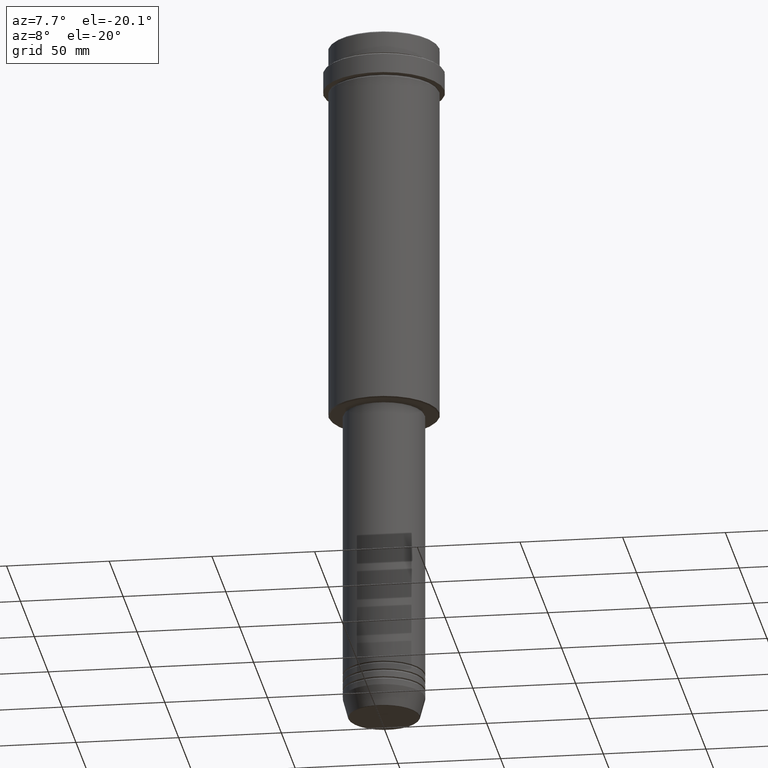
[diagram: clean part render]
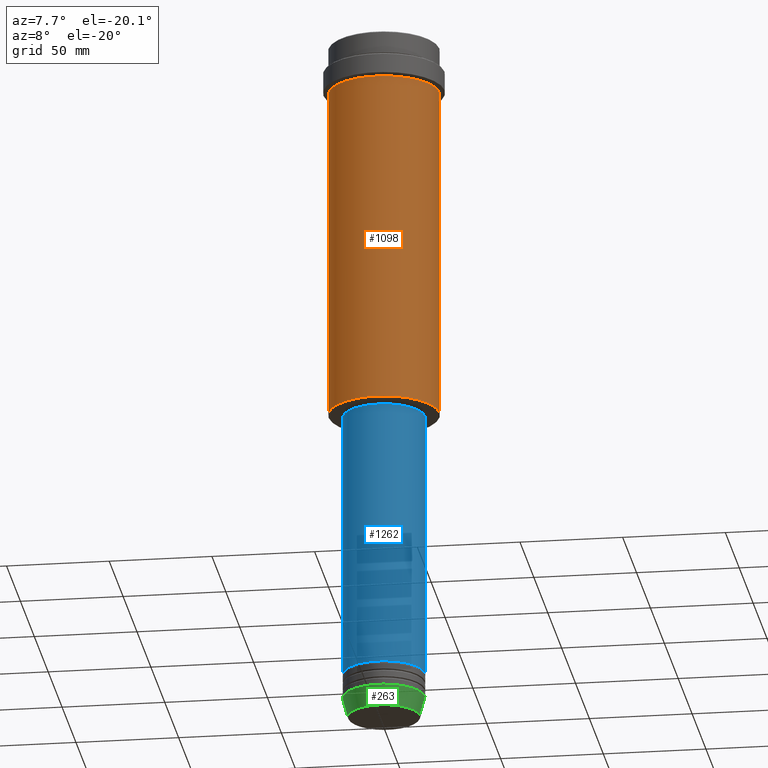
[diagram: same view with three faces highlighted in distinct colors, each labeled with its STEP entity id]
A machine part, auxiliary view with three faces highlighted in distinct colors.
Their STEP definitions:

[orange] entity #1098 — the highlighted cylindrical surface (partial cylindrical patch) has radius 27 mm, axis along (-0, -0, 1).
#14 = EDGE_CURVE ( 'NONE', #1328, #914, #1084, .T. ) ;
#94 = CARTESIAN_POINT ( 'NONE',  ( -27.00000000000000355, 3.306546357697854128E-15, -23.00000000000001421 ) ) ;
#123 = EDGE_CURVE ( 'NONE', #860, #914, #1132, .T. ) ;
#212 = LINE ( 'NONE', #1196, #541 ) ;
#360 = CIRCLE ( 'NONE', #1154, 27.00000000000000355 ) ;
#385 = ORIENTED_EDGE ( 'NONE', *, *, #14, .T. ) ;
#388 = FACE_OUTER_BOUND ( 'NONE', #713, .T. ) ;
#477 = EDGE_CURVE ( 'NONE', #1393, #860, #212, .T. ) ;
#512 = ORIENTED_EDGE ( 'NONE', *, *, #887, .T. ) ;
#521 = DIRECTION ( 'NONE',  ( -0.000000000000000000, -0.000000000000000000, 1.000000000000000000 ) ) ;
#541 = VECTOR ( 'NONE', #1082, 1000.000000000000000 ) ;
#555 = CARTESIAN_POINT ( 'NONE',  ( 27.00000000000000355, 0.000000000000000000, -187.5000000000000568 ) ) ;
#637 = DIRECTION ( 'NONE',  ( -0.000000000000000000, -0.000000000000000000, 1.000000000000000000 ) ) ;
#651 = VECTOR ( 'NONE', #637, 1000.000000000000000 ) ;
#652 = ORIENTED_EDGE ( 'NONE', *, *, #123, .F. ) ;
#682 = DIRECTION ( 'NONE',  ( -0.000000000000000000, -0.000000000000000000, 1.000000000000000000 ) ) ;
#690 = CYLINDRICAL_SURFACE ( 'NONE', #1034, 27.00000000000000355 ) ;
#695 = DIRECTION ( 'NONE',  ( 1.000000000000000000, 0.000000000000000000, 0.000000000000000000 ) ) ;
#713 = EDGE_LOOP ( 'NONE', ( #880, #512, #385, #652 ) ) ;
#841 = DIRECTION ( 'NONE',  ( -1.000000000000000000, 0.000000000000000000, 0.000000000000000000 ) ) ;
#860 = VERTEX_POINT ( 'NONE', #94 ) ;
#880 = ORIENTED_EDGE ( 'NONE', *, *, #477, .F. ) ;
#887 = EDGE_CURVE ( 'NONE', #1393, #1328, #360, .T. ) ;
#914 = VERTEX_POINT ( 'NONE', #1400 ) ;
#950 = AXIS2_PLACEMENT_3D ( 'NONE', #1325, #682, #1346 ) ;
#962 = CARTESIAN_POINT ( 'NONE',  ( 0.000000000000000000, 0.000000000000000000, -187.5000000000000568 ) ) ;
#1034 = AXIS2_PLACEMENT_3D ( 'NONE', #1127, #1140, #695 ) ;
#1082 = DIRECTION ( 'NONE',  ( -0.000000000000000000, -0.000000000000000000, 1.000000000000000000 ) ) ;
#1084 = LINE ( 'NONE', #1189, #651 ) ;
#1098 = ADVANCED_FACE ( 'NONE', ( #388 ), #690, .T. ) ;
#1102 = CARTESIAN_POINT ( 'NONE',  ( -27.00000000000000355, 3.306546357697854128E-15, -187.5000000000000568 ) ) ;
#1127 = CARTESIAN_POINT ( 'NONE',  ( 0.000000000000000000, 0.000000000000000000, 0.000000000000000000 ) ) ;
#1132 = CIRCLE ( 'NONE', #950, 27.00000000000000355 ) ;
#1140 = DIRECTION ( 'NONE',  ( -0.000000000000000000, -0.000000000000000000, 1.000000000000000000 ) ) ;
#1154 = AXIS2_PLACEMENT_3D ( 'NONE', #962, #521, #841 ) ;
#1189 = CARTESIAN_POINT ( 'NONE',  ( 27.00000000000000355, 0.000000000000000000, 0.000000000000000000 ) ) ;
#1196 = CARTESIAN_POINT ( 'NONE',  ( -27.00000000000000355, 3.306546357697854128E-15, 0.000000000000000000 ) ) ;
#1325 = CARTESIAN_POINT ( 'NONE',  ( 0.000000000000000000, 0.000000000000000000, -23.00000000000001421 ) ) ;
#1328 = VERTEX_POINT ( 'NONE', #555 ) ;
#1346 = DIRECTION ( 'NONE',  ( 1.000000000000000000, 0.000000000000000000, 0.000000000000000000 ) ) ;
#1393 = VERTEX_POINT ( 'NONE', #1102 ) ;
#1400 = CARTESIAN_POINT ( 'NONE',  ( 27.00000000000000355, 0.000000000000000000, -23.00000000000001421 ) ) ;

[blue] entity #1262 — the highlighted cylindrical surface (partial cylindrical patch) has radius 20 mm, axis along (-0, -0, 1).
#43 = CARTESIAN_POINT ( 'NONE',  ( 20.00000000000000000, 0.000000000000000000, 0.000000000000000000 ) ) ;
#46 = CIRCLE ( 'NONE', #892, 20.00000000000000000 ) ;
#72 = ORIENTED_EDGE ( 'NONE', *, *, #613, .T. ) ;
#176 = CARTESIAN_POINT ( 'NONE',  ( 20.00000000000000000, 0.000000000000000000, -320.9999999999998863 ) ) ;
#238 = CARTESIAN_POINT ( 'NONE',  ( -20.00000000000000000, 2.449293598294706513E-15, 0.000000000000000000 ) ) ;
#245 = FACE_OUTER_BOUND ( 'NONE', #601, .T. ) ;
#246 = DIRECTION ( 'NONE',  ( -0.000000000000000000, -0.000000000000000000, 1.000000000000000000 ) ) ;
#329 = VECTOR ( 'NONE', #674, 1000.000000000000000 ) ;
#408 = CARTESIAN_POINT ( 'NONE',  ( -20.00000000000000000, 2.449293598294706513E-15, -320.9999999999998863 ) ) ;
#416 = ORIENTED_EDGE ( 'NONE', *, *, #755, .T. ) ;
#446 = DIRECTION ( 'NONE',  ( 1.000000000000000000, 0.000000000000000000, 0.000000000000000000 ) ) ;
#457 = VECTOR ( 'NONE', #942, 1000.000000000000000 ) ;
#465 = CYLINDRICAL_SURFACE ( 'NONE', #1193, 20.00000000000000000 ) ;
#569 = DIRECTION ( 'NONE',  ( -0.000000000000000000, -0.000000000000000000, 1.000000000000000000 ) ) ;
#601 = EDGE_LOOP ( 'NONE', ( #1368, #72, #416, #1275 ) ) ;
#613 = EDGE_CURVE ( 'NONE', #1221, #765, #726, .T. ) ;
#656 = DIRECTION ( 'NONE',  ( 1.000000000000000000, 0.000000000000000000, 0.000000000000000000 ) ) ;
#674 = DIRECTION ( 'NONE',  ( -0.000000000000000000, -0.000000000000000000, 1.000000000000000000 ) ) ;
#708 = LINE ( 'NONE', #43, #457 ) ;
#726 = CIRCLE ( 'NONE', #1024, 20.00000000000000000 ) ;
#755 = EDGE_CURVE ( 'NONE', #765, #1070, #708, .T. ) ;
#765 = VERTEX_POINT ( 'NONE', #176 ) ;
#892 = AXIS2_PLACEMENT_3D ( 'NONE', #902, #569, #656 ) ;
#902 = CARTESIAN_POINT ( 'NONE',  ( 0.000000000000000000, 0.000000000000000000, -188.9999999999999432 ) ) ;
#942 = DIRECTION ( 'NONE',  ( -0.000000000000000000, -0.000000000000000000, 1.000000000000000000 ) ) ;
#1004 = CARTESIAN_POINT ( 'NONE',  ( 0.000000000000000000, 0.000000000000000000, -320.9999999999998863 ) ) ;
#1009 = DIRECTION ( 'NONE',  ( 1.000000000000000000, 0.000000000000000000, 0.000000000000000000 ) ) ;
#1017 = EDGE_CURVE ( 'NONE', #1221, #1380, #1207, .T. ) ;
#1024 = AXIS2_PLACEMENT_3D ( 'NONE', #1004, #246, #1009 ) ;
#1070 = VERTEX_POINT ( 'NONE', #1362 ) ;
#1116 = CARTESIAN_POINT ( 'NONE',  ( 0.000000000000000000, 0.000000000000000000, 0.000000000000000000 ) ) ;
#1193 = AXIS2_PLACEMENT_3D ( 'NONE', #1116, #1344, #446 ) ;
#1207 = LINE ( 'NONE', #238, #329 ) ;
#1208 = CARTESIAN_POINT ( 'NONE',  ( -20.00000000000000000, 2.449293598294706513E-15, -188.9999999999999432 ) ) ;
#1221 = VERTEX_POINT ( 'NONE', #408 ) ;
#1262 = ADVANCED_FACE ( 'NONE', ( #245 ), #465, .T. ) ;
#1275 = ORIENTED_EDGE ( 'NONE', *, *, #1333, .F. ) ;
#1333 = EDGE_CURVE ( 'NONE', #1380, #1070, #46, .T. ) ;
#1344 = DIRECTION ( 'NONE',  ( -0.000000000000000000, -0.000000000000000000, 1.000000000000000000 ) ) ;
#1362 = CARTESIAN_POINT ( 'NONE',  ( 20.00000000000000000, 0.000000000000000000, -188.9999999999999432 ) ) ;
#1368 = ORIENTED_EDGE ( 'NONE', *, *, #1017, .F. ) ;
#1380 = VERTEX_POINT ( 'NONE', #1208 ) ;

[green] entity #263 — the highlighted conical surface has half-angle 15 deg.
#36 = CARTESIAN_POINT ( 'NONE',  ( -20.00000000000000000, 2.449293598294706513E-15, -333.0000000000000000 ) ) ;
#40 = EDGE_CURVE ( 'NONE', #161, #1197, #608, .T. ) ;
#62 = CARTESIAN_POINT ( 'NONE',  ( 20.00000000000000000, 0.000000000000000000, -333.0000000000000000 ) ) ;
#67 = DIRECTION ( 'NONE',  ( -0.000000000000000000, -0.000000000000000000, 1.000000000000000000 ) ) ;
#73 = DIRECTION ( 'NONE',  ( 1.000000000000000000, 0.000000000000000000, 0.000000000000000000 ) ) ;
#98 = DIRECTION ( 'NONE',  ( -0.000000000000000000, -0.000000000000000000, 1.000000000000000000 ) ) ;
#109 = CONICAL_SURFACE ( 'NONE', #676, 20.00000000000000000, 0.2617993877991499074 ) ;
#161 = VERTEX_POINT ( 'NONE', #36 ) ;
#170 = DIRECTION ( 'NONE',  ( -0.000000000000000000, -0.000000000000000000, 1.000000000000000000 ) ) ;
#181 = AXIS2_PLACEMENT_3D ( 'NONE', #1410, #98, #965 ) ;
#203 = CARTESIAN_POINT ( 'NONE',  ( -20.00000000000000000, 2.449293598294706513E-15, -333.0000000000000000 ) ) ;
#215 = VECTOR ( 'NONE', #499, 1000.000000000000114 ) ;
#217 = LINE ( 'NONE', #203, #859 ) ;
#263 = ADVANCED_FACE ( 'NONE', ( #813 ), #109, .T. ) ;
#283 = CARTESIAN_POINT ( 'NONE',  ( 0.000000000000000000, 0.000000000000000000, -342.6294095225512706 ) ) ;
#377 = LINE ( 'NONE', #62, #215 ) ;
#415 = DIRECTION ( 'NONE',  ( 1.000000000000000000, 0.000000000000000000, 0.000000000000000000 ) ) ;
#431 = ORIENTED_EDGE ( 'NONE', *, *, #677, .T. ) ;
#432 = DIRECTION ( 'NONE',  ( -0.2588190451025211836, 3.169619151431770488E-17, 0.9659258262890680902 ) ) ;
#464 = CARTESIAN_POINT ( 'NONE',  ( -17.41980749484382684, 2.291302373663531915E-15, -342.6294095225512706 ) ) ;
#499 = DIRECTION ( 'NONE',  ( 0.2588190451025211836, 0.000000000000000000, 0.9659258262890680902 ) ) ;
#566 = ORIENTED_EDGE ( 'NONE', *, *, #40, .F. ) ;
#608 = CIRCLE ( 'NONE', #181, 20.00000000000000000 ) ;
#676 = AXIS2_PLACEMENT_3D ( 'NONE', #1258, #67, #415 ) ;
#677 = EDGE_CURVE ( 'NONE', #1029, #1321, #1115, .T. ) ;
#739 = EDGE_LOOP ( 'NONE', ( #751, #431, #1356, #566 ) ) ;
#751 = ORIENTED_EDGE ( 'NONE', *, *, #816, .F. ) ;
#813 = FACE_OUTER_BOUND ( 'NONE', #739, .T. ) ;
#816 = EDGE_CURVE ( 'NONE', #1029, #161, #217, .T. ) ;
#859 = VECTOR ( 'NONE', #432, 1000.000000000000114 ) ;
#896 = CARTESIAN_POINT ( 'NONE',  ( 17.41980749484382684, 0.000000000000000000, -342.6294095225512706 ) ) ;
#905 = AXIS2_PLACEMENT_3D ( 'NONE', #283, #170, #73 ) ;
#965 = DIRECTION ( 'NONE',  ( 1.000000000000000000, 0.000000000000000000, 0.000000000000000000 ) ) ;
#1029 = VERTEX_POINT ( 'NONE', #464 ) ;
#1115 = CIRCLE ( 'NONE', #905, 17.41980749484382684 ) ;
#1168 = EDGE_CURVE ( 'NONE', #1321, #1197, #377, .T. ) ;
#1197 = VERTEX_POINT ( 'NONE', #1245 ) ;
#1245 = CARTESIAN_POINT ( 'NONE',  ( 20.00000000000000000, 0.000000000000000000, -333.0000000000000000 ) ) ;
#1258 = CARTESIAN_POINT ( 'NONE',  ( 0.000000000000000000, 0.000000000000000000, -333.0000000000000000 ) ) ;
#1321 = VERTEX_POINT ( 'NONE', #896 ) ;
#1356 = ORIENTED_EDGE ( 'NONE', *, *, #1168, .T. ) ;
#1410 = CARTESIAN_POINT ( 'NONE',  ( 0.000000000000000000, 0.000000000000000000, -333.0000000000000000 ) ) ;